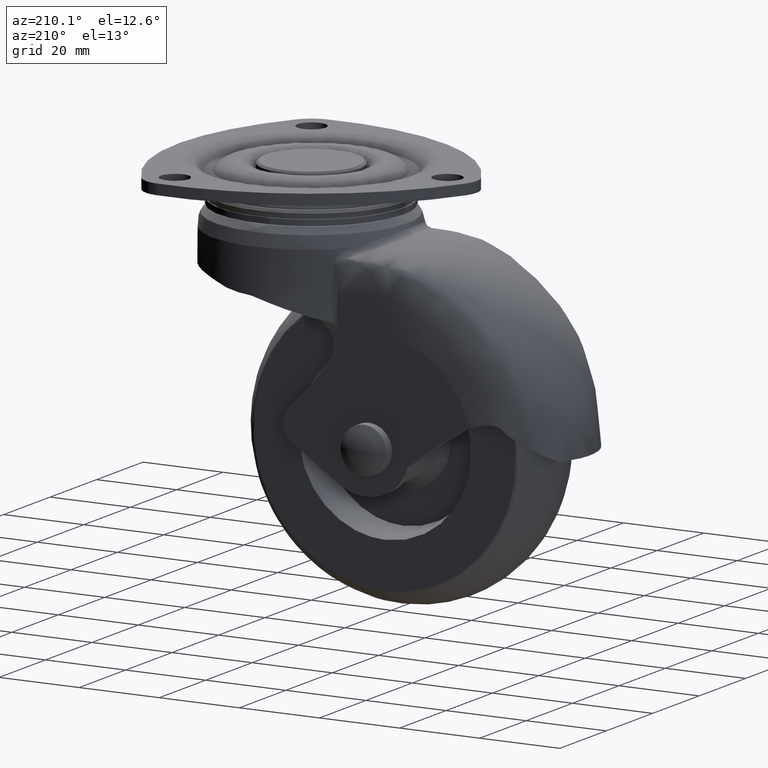
[diagram: clean part render]
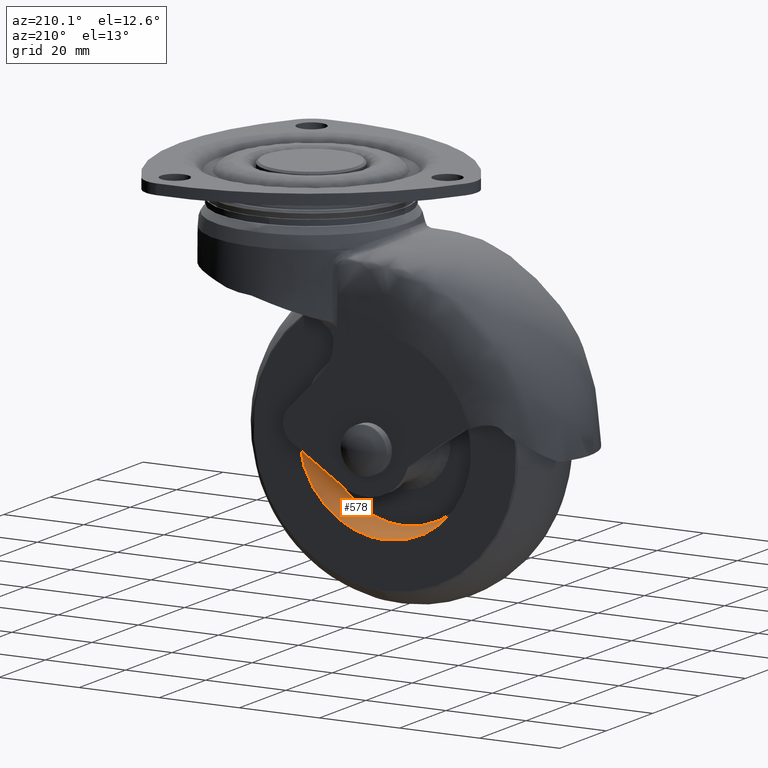
[diagram: same view with one face highlighted and labeled with its STEP entity id]
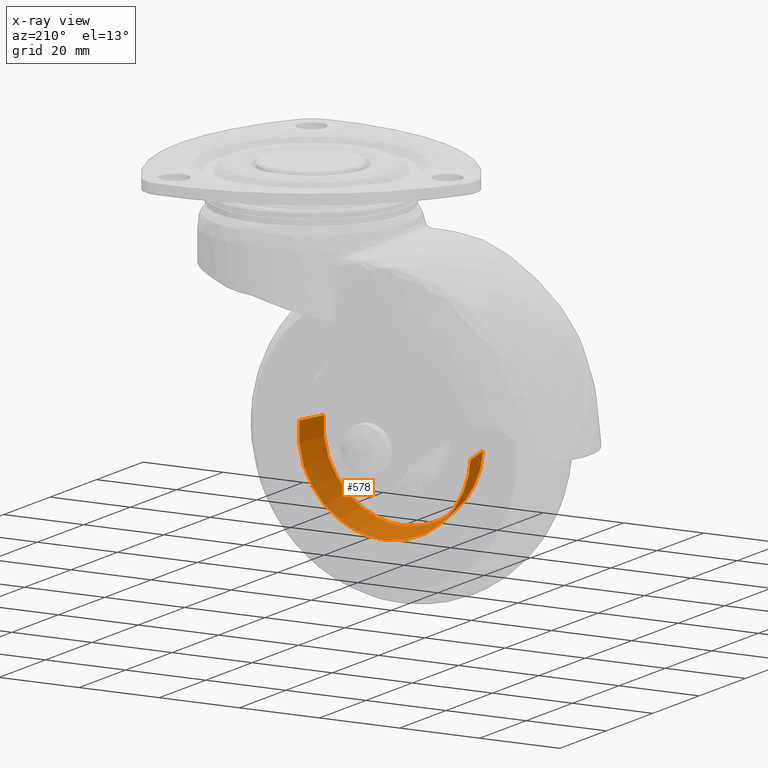
[diagram: x-ray of the same camera — body ghosted, the highlighted face saturated]
A machine part, auxiliary view. The second image highlights one B-rep face of the part: STEP entity #578.
The next image is the same camera in x-ray: the body ghosted, the highlighted face saturated — about 3% of this face is hidden behind the body in this view.
In plain terms, the highlighted face is a freeform B-spline surface patch.
Its self-contained STEP definition (entity closure, byte-faithful):
#476=CARTESIAN_POINT('',(19.734459062102786,3.300000000000000,-55.154260397389820));
#477=CARTESIAN_POINT('',(19.801593121731592,3.300000000000000,-55.719052137250145));
#478=CARTESIAN_POINT('',(19.836315558872840,3.299999999999999,-56.286758966287522));
#479=CARTESIAN_POINT('',(21.049556592585322,3.300000000000000,-76.123074525160362));
#480=CARTESIAN_POINT('',(1.213241033712484,3.299999999999999,-77.336315558872840));
#481=CARTESIAN_POINT('',(-18.623074525160352,3.300000000000000,-78.549556592585333));
#482=CARTESIAN_POINT('',(-19.836315558872840,3.299999999999999,-58.713241033712492));
#483=CARTESIAN_POINT('',(21.390085960686729,11.705000000000002,-54.957464043816941));
#484=CARTESIAN_POINT('',(21.462852247405355,11.704999999999998,-55.569639114209309));
#485=CARTESIAN_POINT('',(21.500487731250072,11.705000000000000,-56.184973835843401));
#486=CARTESIAN_POINT('',(22.815513895406671,11.705000000000004,-77.685461567093483));
#487=CARTESIAN_POINT('',(1.315026164156599,11.705000000000000,-79.000487731250075));
#488=CARTESIAN_POINT('',(-20.185461567093473,11.705000000000004,-80.315513895406681));
#489=CARTESIAN_POINT('',(-21.500487731250072,11.705000000000000,-58.815026164156599));
#497=(BOUNDED_SURFACE()B_SPLINE_SURFACE(2,1,((#476,#483),(#477,#484),(#478,#485),(#479,#486),(#480,#487),(#481,#488),(#482,#489)),.UNSPECIFIED.,.F.,.F.,.U.)B_SPLINE_SURFACE_WITH_KNOTS((3,2,2,3),(2,2),(0.0,1.427589721148033,37.117332749848799,72.807075778549574),(0.0,8.568772037584754),.UNSPECIFIED.)GEOMETRIC_REPRESENTATION_ITEM()RATIONAL_B_SPLINE_SURFACE(((0.977505800795127,0.977505800795127),(0.988284271247462,0.988284271247462),(1.0,1.0),(0.707106781186548,0.707106781186548),(1.0,1.0),(0.707106781186548,0.707106781186548),(1.0,1.0)))REPRESENTATION_ITEM('')SURFACE());
#498=CARTESIAN_POINT('',(19.773855300016240,3.500000000011117,-55.149577557255597));
#499=VERTEX_POINT('',#498);
#500=CARTESIAN_POINT('',(0.0,3.500000000000000,-77.413057000000009));
#501=VERTEX_POINT('',#500);
#502=CARTESIAN_POINT('',(19.773855300016240,3.500000000011117,-55.149577557255597));
#503=CARTESIAN_POINT('',(19.913057000000002,3.500000000000000,-56.320666729523190));
#504=CARTESIAN_POINT('',(19.913056999999998,3.500000000000000,-57.500000000000000));
#505=CARTESIAN_POINT('',(19.913057000000002,3.499999999999999,-77.413057000000009));
#506=CARTESIAN_POINT('',(0.0,3.500000000000000,-77.413057000000009));
#514=(BOUNDED_CURVE()B_SPLINE_CURVE(2,(#502,#503,#504,#505,#506),.UNSPECIFIED.,.F.,.U.)B_SPLINE_CURVE_WITH_KNOTS((3,2,3),(0.229562473514401,0.250000000000000,0.500000000000000),.UNSPECIFIED.)CURVE()GEOMETRIC_REPRESENTATION_ITEM()RATIONAL_B_SPLINE_CURVE((0.956026754185449,0.976055948332191,1.0,0.707106781186548,1.0))REPRESENTATION_ITEM(''));
#515=EDGE_CURVE('',#499,#501,#514,.T.);
#516=ORIENTED_EDGE('',*,*,#515,.F.);
#517=CARTESIAN_POINT('',(21.349704876235879,11.499996489461729,-54.962270354561987));
#518=VERTEX_POINT('',#517);
#519=CARTESIAN_POINT('',(19.773855300016240,3.500000000011117,-55.149577557255597));
#520=CARTESIAN_POINT('',(21.349704876235879,11.499996489461729,-54.962270354561987));
#521=QUASI_UNIFORM_CURVE('',1,(#519,#520),.UNSPECIFIED.,.F.,.U.);
#522=EDGE_CURVE('',#499,#518,#521,.T.);
#523=ORIENTED_EDGE('',*,*,#522,.T.);
#524=CARTESIAN_POINT('',(0.0,11.500000000000000,-79.0));
#525=VERTEX_POINT('',#524);
#526=CARTESIAN_POINT('',(21.349704876235887,11.499996489461729,-54.962270354561994));
#527=CARTESIAN_POINT('',(21.499999326676196,11.499996581791061,-56.226684699655188));
#528=CARTESIAN_POINT('',(21.499999347153210,11.499996685745071,-57.500000077600539));
#529=CARTESIAN_POINT('',(21.499999692908698,11.499998441014204,-79.000000036502357));
#530=CARTESIAN_POINT('',(0.0,11.500000000000000,-79.0));
#538=(BOUNDED_CURVE()B_SPLINE_CURVE(2,(#526,#527,#528,#529,#530),.UNSPECIFIED.,.F.,.U.)B_SPLINE_CURVE_WITH_KNOTS((3,2,3),(0.229562523524565,0.250000000000000,0.500000000000000),.UNSPECIFIED.)CURVE()GEOMETRIC_REPRESENTATION_ITEM()RATIONAL_B_SPLINE_CURVE((0.956026852207440,0.976056006922742,1.0,0.707106781186548,1.0))REPRESENTATION_ITEM(''));
#539=EDGE_CURVE('',#518,#525,#538,.T.);
#540=ORIENTED_EDGE('',*,*,#539,.T.);
#541=CARTESIAN_POINT('',(-21.459898166068040,11.500000000009161,-58.812543600063542));
#542=VERTEX_POINT('',#541);
#543=CARTESIAN_POINT('',(0.0,11.500000000000000,-79.0));
#544=CARTESIAN_POINT('',(-20.225180438351575,11.500000000000000,-79.0));
#545=CARTESIAN_POINT('',(-21.459898166068037,11.500000000009157,-58.812543600063535));
#553=(BOUNDED_CURVE()B_SPLINE_CURVE(2,(#543,#544,#545),.UNSPECIFIED.,.F.,.U.)B_SPLINE_CURVE_WITH_KNOTS((3,3),(0.500000000000000,0.739332962240939),.UNSPECIFIED.)CURVE()GEOMETRIC_REPRESENTATION_ITEM()RATIONAL_B_SPLINE_CURVE((1.0,0.719603993284372,0.976072041670996))REPRESENTATION_ITEM(''));
#554=EDGE_CURVE('',#525,#542,#553,.T.);
#555=ORIENTED_EDGE('',*,*,#554,.T.);
#556=CARTESIAN_POINT('',(-19.875915132176271,3.499999967796027,-58.715662983460767));
#557=VERTEX_POINT('',#556);
#558=CARTESIAN_POINT('',(-19.875915132176271,3.499999967796027,-58.715662983460767));
#559=CARTESIAN_POINT('',(-21.459898166068040,11.500000000009161,-58.812543600063542));
#560=QUASI_UNIFORM_CURVE('',1,(#558,#559),.UNSPECIFIED.,.F.,.U.);
#561=EDGE_CURVE('',#557,#542,#560,.T.);
#562=ORIENTED_EDGE('',*,*,#561,.F.);
#563=CARTESIAN_POINT('',(0.0,3.500000000000000,-77.413057000000009));
#564=CARTESIAN_POINT('',(-18.732333650783250,3.500000000000000,-77.413056999999995));
#565=CARTESIAN_POINT('',(-19.875915132176271,3.499999967796028,-58.715662983460774));
#573=(BOUNDED_CURVE()B_SPLINE_CURVE(2,(#563,#564,#565),.UNSPECIFIED.,.F.,.U.)B_SPLINE_CURVE_WITH_KNOTS((3,3),(0.500000000000000,0.739332963347494),.UNSPECIFIED.)CURVE()GEOMETRIC_REPRESENTATION_ITEM()RATIONAL_B_SPLINE_CURVE((1.0,0.719603991987962,0.976072044042553))REPRESENTATION_ITEM(''));
#574=EDGE_CURVE('',#501,#557,#573,.T.);
#575=ORIENTED_EDGE('',*,*,#574,.F.);
#576=EDGE_LOOP('',(#516,#523,#540,#555,#562,#575));
#577=FACE_OUTER_BOUND('',#576,.T.);
#578=ADVANCED_FACE('',(#577),#497,.F.);